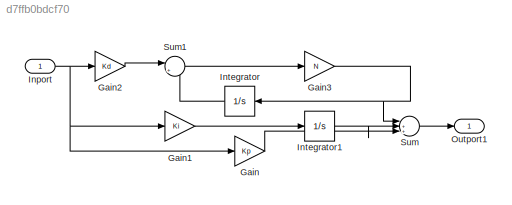
MODEL slx_d7ffb0bdcf70
KIND model
CONFIG AbsTol = auto
CONFIG EnableMultiTasking = off
CONFIG FixedStep = auto
CONFIG MaxStep = auto
CONFIG MinStep = auto
CONFIG RelTol = 1e-3
CONFIG SampleTimeConstraint = Unconstrained
CONFIG SolverName = VariableStepAuto
CONFIG StartTime = 0.0
CONFIG StopTime = 10.0
BLOCK [Gain] Gain
  Gain = Kp
BLOCK [Gain] Gain1
  Gain = Ki
BLOCK [Gain] Gain2
  Gain = Kd
BLOCK [Gain] Gain3
  Gain = N
BLOCK [Inport] Inport
BLOCK [Integrator] Integrator
  Ports = [1, 1]
BLOCK [Integrator] Integrator1
  Ports = [1, 1]
BLOCK [Outport] Outport1
BLOCK [Sum] Sum
  Inputs = |+++
  NameLocation = top
  Ports = [3, 1]
BLOCK [Sum] Sum1
  Inputs = |+-
  Ports = [2, 1]
LINE Gain1:1 -> Integrator1:1
LINE Gain2:1 -> Sum1:1
NET Gain3:1 -> Integrator:1, Sum:1
LINE Gain:1 -> Sum:3
NET Inport:1 -> Gain1:1, Gain2:1, Gain:1
LINE Integrator1:1 -> Sum:2
LINE Integrator:1 -> Sum1:2
LINE Sum1:1 -> Gain3:1
LINE Sum:1 -> Outport1:1
note: NET lines group one-source signal fan-out (src -> all destinations, sorted); 1:1 wires keep LINE
